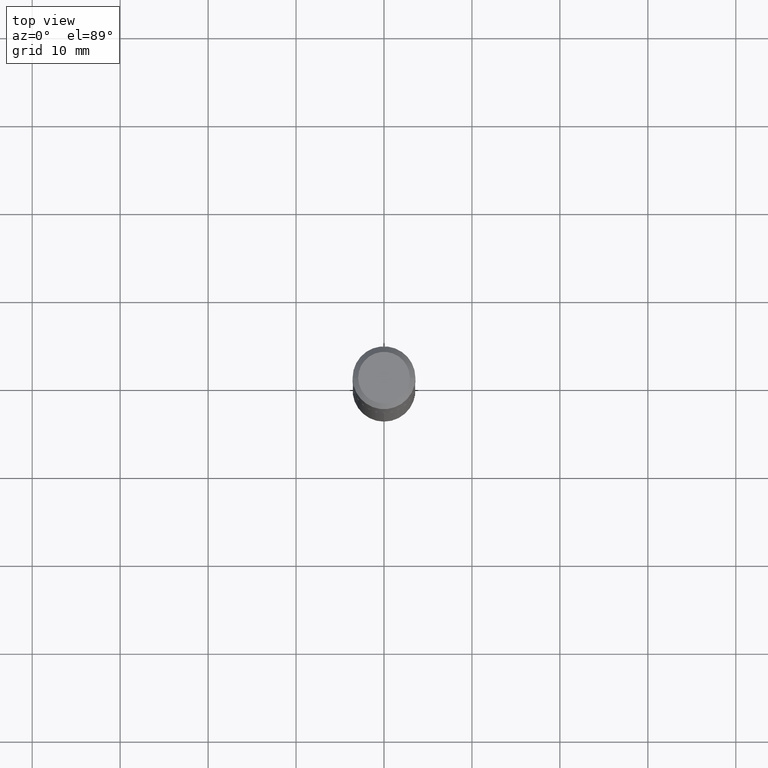
[diagram: clean part render]
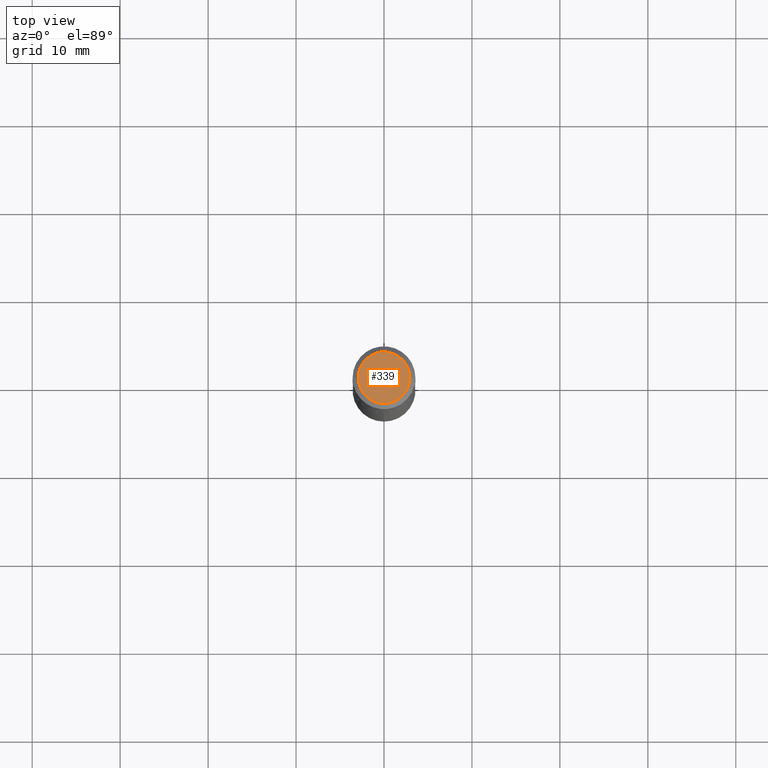
[diagram: same view with one face highlighted and labeled with its STEP entity id]
A machine part, top view. The second image highlights one B-rep face of the part: STEP entity #339.
In plain terms, the highlighted planar face has unit normal (0, -0, -1).
Its self-contained STEP definition (entity closure, byte-faithful):
#43 = VERTEX_POINT ( 'NONE', #297 ) ;
#57 = EDGE_LOOP ( 'NONE', ( #376, #79 ) ) ;
#79 = ORIENTED_EDGE ( 'NONE', *, *, #126, .T. ) ;
#81 = CARTESIAN_POINT ( 'NONE',  ( -1.167985862904635082E-47, 1.667574263899816494E-33, 4.776122516674668280E-19 ) ) ;
#82 = DIRECTION ( 'NONE',  ( -2.445468806185136597E-29, 3.491481338843145583E-15, 1.000000000000000000 ) ) ;
#108 = VERTEX_POINT ( 'NONE', #323 ) ;
#122 = DIRECTION ( 'NONE',  ( 1.000000000000000000, -6.982962677686265922E-15, 4.876128510338472698E-29 ) ) ;
#126 = EDGE_CURVE ( 'NONE', #43, #108, #252, .T. ) ;
#151 = CIRCLE ( 'NONE', #278, 0.1155999999999999944 ) ;
#156 = AXIS2_PLACEMENT_3D ( 'NONE', #267, #414, #352 ) ;
#180 = PLANE ( 'NONE',  #221 ) ;
#221 = AXIS2_PLACEMENT_3D ( 'NONE', #81, #275, #367 ) ;
#242 = EDGE_CURVE ( 'NONE', #108, #43, #151, .T. ) ;
#252 = CIRCLE ( 'NONE', #156, 0.1155999999999999944 ) ;
#267 = CARTESIAN_POINT ( 'NONE',  ( -2.335971725809270164E-47, 3.335148527799632988E-33, 9.552245033349336561E-19 ) ) ;
#275 = DIRECTION ( 'NONE',  ( 2.438088387897960049E-29, -3.491481338843145188E-15, -1.000000000000000000 ) ) ;
#278 = AXIS2_PLACEMENT_3D ( 'NONE', #362, #82, #122 ) ;
#297 = CARTESIAN_POINT ( 'NONE',  ( 0.1155999999999999944, -9.224733102500728265E-16, 9.552245033409814613E-19 ) ) ;
#323 = CARTESIAN_POINT ( 'NONE',  ( -0.1155999999999999944, 8.508740022760711120E-16, 9.552245033291358366E-19 ) ) ;
#339 = ADVANCED_FACE ( 'NONE', ( #361 ), #180, .F. ) ;
#352 = DIRECTION ( 'NONE',  ( 1.000000000000000000, -6.982962677686265922E-15, 4.876128510338472698E-29 ) ) ;
#361 = FACE_OUTER_BOUND ( 'NONE', #57, .T. ) ;
#362 = CARTESIAN_POINT ( 'NONE',  ( -2.335971725809270164E-47, 3.335148527799632988E-33, 9.552245033349336561E-19 ) ) ;
#367 = DIRECTION ( 'NONE',  ( -1.000000000000000000, 6.982962677686265922E-15, -4.876176775795935793E-29 ) ) ;
#376 = ORIENTED_EDGE ( 'NONE', *, *, #242, .T. ) ;
#414 = DIRECTION ( 'NONE',  ( -2.445468806185136597E-29, 3.491481338843145583E-15, 1.000000000000000000 ) ) ;